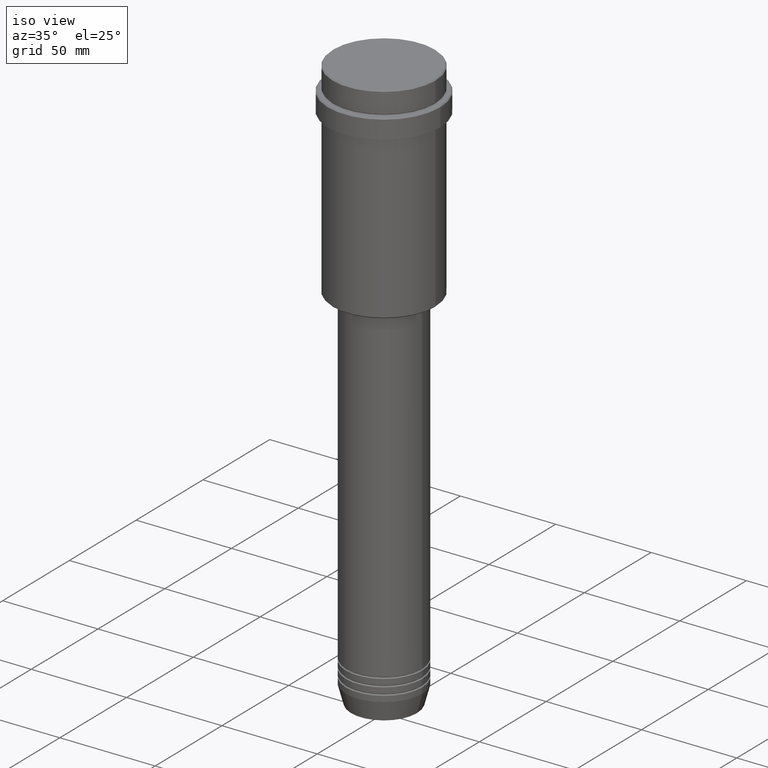
[diagram: clean part render]
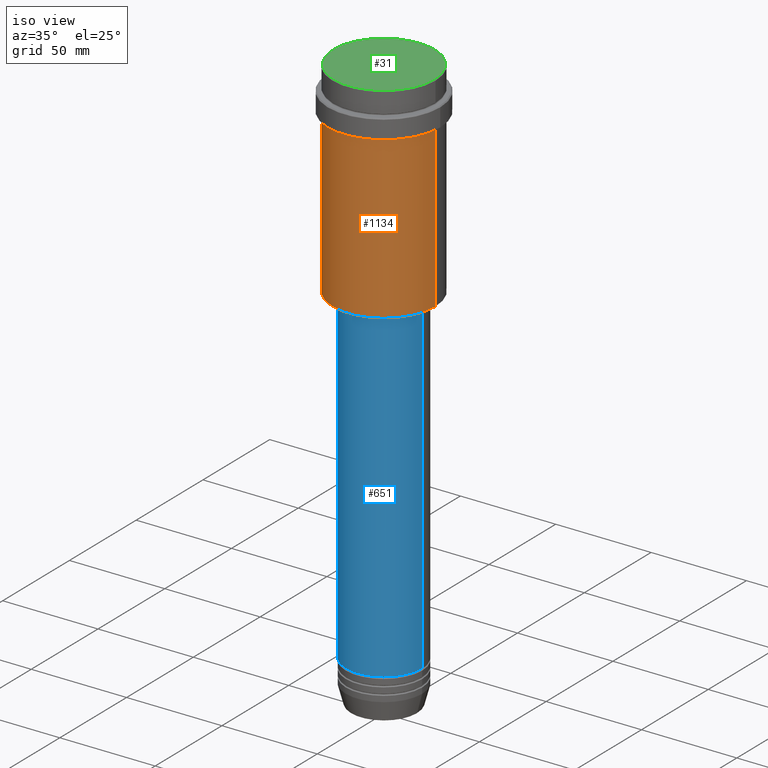
[diagram: same view with three faces highlighted in distinct colors, each labeled with its STEP entity id]
A machine part, iso view with three faces highlighted in distinct colors.
Their STEP definitions:

[orange] entity #1134 — the highlighted cylindrical surface (partial cylindrical patch) has radius 27 mm, axis along (-0, -0, 1).
#30 = DIRECTION ( 'NONE',  ( -0.000000000000000000, -0.000000000000000000, 1.000000000000000000 ) ) ;
#48 = VECTOR ( 'NONE', #726, 1000.000000000000000 ) ;
#59 = LINE ( 'NONE', #1354, #941 ) ;
#140 = EDGE_LOOP ( 'NONE', ( #185, #521, #932, #1257 ) ) ;
#161 = DIRECTION ( 'NONE',  ( -1.000000000000000000, 0.000000000000000000, 0.000000000000000000 ) ) ;
#185 = ORIENTED_EDGE ( 'NONE', *, *, #887, .F. ) ;
#190 = EDGE_CURVE ( 'NONE', #374, #734, #844, .T. ) ;
#197 = CARTESIAN_POINT ( 'NONE',  ( -27.00000000000000355, 3.306546357697854128E-15, -107.4999999999999574 ) ) ;
#232 = DIRECTION ( 'NONE',  ( 1.000000000000000000, 0.000000000000000000, 0.000000000000000000 ) ) ;
#239 = DIRECTION ( 'NONE',  ( 1.000000000000000000, 0.000000000000000000, 0.000000000000000000 ) ) ;
#251 = CARTESIAN_POINT ( 'NONE',  ( -27.00000000000000355, 3.306546357697854128E-15, -23.00000000000001421 ) ) ;
#306 = EDGE_CURVE ( 'NONE', #950, #438, #1367, .T. ) ;
#323 = EDGE_CURVE ( 'NONE', #438, #734, #59, .T. ) ;
#348 = CARTESIAN_POINT ( 'NONE',  ( 27.00000000000000355, 0.000000000000000000, -23.00000000000001421 ) ) ;
#374 = VERTEX_POINT ( 'NONE', #251 ) ;
#438 = VERTEX_POINT ( 'NONE', #777 ) ;
#491 = DIRECTION ( 'NONE',  ( -0.000000000000000000, -0.000000000000000000, 1.000000000000000000 ) ) ;
#521 = ORIENTED_EDGE ( 'NONE', *, *, #306, .T. ) ;
#623 = LINE ( 'NONE', #852, #48 ) ;
#670 = FACE_OUTER_BOUND ( 'NONE', #140, .T. ) ;
#726 = DIRECTION ( 'NONE',  ( -0.000000000000000000, -0.000000000000000000, 1.000000000000000000 ) ) ;
#734 = VERTEX_POINT ( 'NONE', #348 ) ;
#756 = AXIS2_PLACEMENT_3D ( 'NONE', #919, #930, #161 ) ;
#777 = CARTESIAN_POINT ( 'NONE',  ( 27.00000000000000355, 0.000000000000000000, -107.4999999999999574 ) ) ;
#844 = CIRCLE ( 'NONE', #1146, 27.00000000000000355 ) ;
#850 = AXIS2_PLACEMENT_3D ( 'NONE', #1336, #30, #232 ) ;
#852 = CARTESIAN_POINT ( 'NONE',  ( -27.00000000000000355, 3.306546357697854128E-15, 0.000000000000000000 ) ) ;
#887 = EDGE_CURVE ( 'NONE', #950, #374, #623, .T. ) ;
#890 = DIRECTION ( 'NONE',  ( -0.000000000000000000, -0.000000000000000000, 1.000000000000000000 ) ) ;
#919 = CARTESIAN_POINT ( 'NONE',  ( 0.000000000000000000, 0.000000000000000000, -107.4999999999999574 ) ) ;
#930 = DIRECTION ( 'NONE',  ( -0.000000000000000000, -0.000000000000000000, 1.000000000000000000 ) ) ;
#932 = ORIENTED_EDGE ( 'NONE', *, *, #323, .T. ) ;
#941 = VECTOR ( 'NONE', #491, 1000.000000000000000 ) ;
#950 = VERTEX_POINT ( 'NONE', #197 ) ;
#1007 = CARTESIAN_POINT ( 'NONE',  ( 0.000000000000000000, 0.000000000000000000, -23.00000000000001421 ) ) ;
#1134 = ADVANCED_FACE ( 'NONE', ( #670 ), #1342, .T. ) ;
#1146 = AXIS2_PLACEMENT_3D ( 'NONE', #1007, #890, #239 ) ;
#1257 = ORIENTED_EDGE ( 'NONE', *, *, #190, .F. ) ;
#1336 = CARTESIAN_POINT ( 'NONE',  ( 0.000000000000000000, 0.000000000000000000, 0.000000000000000000 ) ) ;
#1342 = CYLINDRICAL_SURFACE ( 'NONE', #850, 27.00000000000000355 ) ;
#1354 = CARTESIAN_POINT ( 'NONE',  ( 27.00000000000000355, 0.000000000000000000, 0.000000000000000000 ) ) ;
#1367 = CIRCLE ( 'NONE', #756, 27.00000000000000355 ) ;

[blue] entity #651 — the highlighted cylindrical surface (partial cylindrical patch) has radius 20 mm, axis along (-0, -0, 1).
#1 = CIRCLE ( 'NONE', #426, 20.00000000000000000 ) ;
#15 = DIRECTION ( 'NONE',  ( 1.000000000000000000, 0.000000000000000000, 0.000000000000000000 ) ) ;
#18 = DIRECTION ( 'NONE',  ( -0.000000000000000000, -0.000000000000000000, 1.000000000000000000 ) ) ;
#35 = EDGE_CURVE ( 'NONE', #923, #878, #1383, .T. ) ;
#36 = CARTESIAN_POINT ( 'NONE',  ( 0.000000000000000000, 0.000000000000000000, 0.000000000000000000 ) ) ;
#50 = CYLINDRICAL_SURFACE ( 'NONE', #1082, 20.00000000000000000 ) ;
#129 = EDGE_CURVE ( 'NONE', #1190, #923, #1, .T. ) ;
#153 = CARTESIAN_POINT ( 'NONE',  ( 20.00000000000000000, 0.000000000000000000, 0.000000000000000000 ) ) ;
#206 = DIRECTION ( 'NONE',  ( 1.000000000000000000, 0.000000000000000000, 0.000000000000000000 ) ) ;
#263 = DIRECTION ( 'NONE',  ( -0.000000000000000000, -0.000000000000000000, 1.000000000000000000 ) ) ;
#283 = CARTESIAN_POINT ( 'NONE',  ( 20.00000000000000000, 0.000000000000000000, -108.9999999999999289 ) ) ;
#297 = CIRCLE ( 'NONE', #575, 20.00000000000000000 ) ;
#345 = CARTESIAN_POINT ( 'NONE',  ( -20.00000000000000000, 2.449293598294706513E-15, -280.9999999999999432 ) ) ;
#366 = FACE_OUTER_BOUND ( 'NONE', #1035, .T. ) ;
#422 = CARTESIAN_POINT ( 'NONE',  ( 0.000000000000000000, 0.000000000000000000, -108.9999999999999289 ) ) ;
#426 = AXIS2_PLACEMENT_3D ( 'NONE', #1209, #557, #15 ) ;
#435 = VERTEX_POINT ( 'NONE', #1132 ) ;
#557 = DIRECTION ( 'NONE',  ( -0.000000000000000000, -0.000000000000000000, 1.000000000000000000 ) ) ;
#575 = AXIS2_PLACEMENT_3D ( 'NONE', #422, #18, #206 ) ;
#579 = EDGE_CURVE ( 'NONE', #435, #878, #297, .T. ) ;
#580 = DIRECTION ( 'NONE',  ( 1.000000000000000000, 0.000000000000000000, 0.000000000000000000 ) ) ;
#596 = DIRECTION ( 'NONE',  ( -0.000000000000000000, -0.000000000000000000, 1.000000000000000000 ) ) ;
#625 = VECTOR ( 'NONE', #263, 1000.000000000000000 ) ;
#651 = ADVANCED_FACE ( 'NONE', ( #366 ), #50, .T. ) ;
#774 = CARTESIAN_POINT ( 'NONE',  ( 20.00000000000000000, 0.000000000000000000, -280.9999999999999432 ) ) ;
#793 = ORIENTED_EDGE ( 'NONE', *, *, #35, .T. ) ;
#817 = ORIENTED_EDGE ( 'NONE', *, *, #579, .F. ) ;
#834 = LINE ( 'NONE', #1245, #625 ) ;
#878 = VERTEX_POINT ( 'NONE', #283 ) ;
#923 = VERTEX_POINT ( 'NONE', #774 ) ;
#929 = DIRECTION ( 'NONE',  ( -0.000000000000000000, -0.000000000000000000, 1.000000000000000000 ) ) ;
#1035 = EDGE_LOOP ( 'NONE', ( #1090, #1078, #793, #817 ) ) ;
#1078 = ORIENTED_EDGE ( 'NONE', *, *, #129, .T. ) ;
#1082 = AXIS2_PLACEMENT_3D ( 'NONE', #36, #929, #580 ) ;
#1090 = ORIENTED_EDGE ( 'NONE', *, *, #1357, .F. ) ;
#1132 = CARTESIAN_POINT ( 'NONE',  ( -20.00000000000000000, 2.449293598294706513E-15, -108.9999999999999289 ) ) ;
#1190 = VERTEX_POINT ( 'NONE', #345 ) ;
#1209 = CARTESIAN_POINT ( 'NONE',  ( 0.000000000000000000, 0.000000000000000000, -280.9999999999999432 ) ) ;
#1245 = CARTESIAN_POINT ( 'NONE',  ( -20.00000000000000000, 2.449293598294706513E-15, 0.000000000000000000 ) ) ;
#1301 = VECTOR ( 'NONE', #596, 1000.000000000000000 ) ;
#1357 = EDGE_CURVE ( 'NONE', #1190, #435, #834, .T. ) ;
#1383 = LINE ( 'NONE', #153, #1301 ) ;

[green] entity #31 — the highlighted planar face has unit normal (0, -0, 1).
#17 = DIRECTION ( 'NONE',  ( -0.000000000000000000, -0.000000000000000000, 1.000000000000000000 ) ) ;
#31 = ADVANCED_FACE ( 'NONE', ( #1055 ), #945, .T. ) ;
#294 = EDGE_CURVE ( 'NONE', #1282, #1197, #1192, .T. ) ;
#303 = DIRECTION ( 'NONE',  ( 1.000000000000000000, 0.000000000000000000, 0.000000000000000000 ) ) ;
#399 = ORIENTED_EDGE ( 'NONE', *, *, #294, .T. ) ;
#519 = ORIENTED_EDGE ( 'NONE', *, *, #933, .T. ) ;
#573 = AXIS2_PLACEMENT_3D ( 'NONE', #1066, #1040, #1242 ) ;
#620 = CARTESIAN_POINT ( 'NONE',  ( 26.49999999999999645, 3.275930187719169552E-15, 0.000000000000000000 ) ) ;
#718 = DIRECTION ( 'NONE',  ( 0.000000000000000000, -0.000000000000000000, 1.000000000000000000 ) ) ;
#790 = CARTESIAN_POINT ( 'NONE',  ( -26.49999999999999645, 0.000000000000000000, 0.000000000000000000 ) ) ;
#845 = CARTESIAN_POINT ( 'NONE',  ( 0.000000000000000000, 0.000000000000000000, 0.000000000000000000 ) ) ;
#903 = AXIS2_PLACEMENT_3D ( 'NONE', #994, #17, #1205 ) ;
#933 = EDGE_CURVE ( 'NONE', #1197, #1282, #1219, .T. ) ;
#945 = PLANE ( 'NONE',  #1302 ) ;
#994 = CARTESIAN_POINT ( 'NONE',  ( 0.000000000000000000, 0.000000000000000000, 0.000000000000000000 ) ) ;
#1040 = DIRECTION ( 'NONE',  ( -0.000000000000000000, -0.000000000000000000, 1.000000000000000000 ) ) ;
#1055 = FACE_OUTER_BOUND ( 'NONE', #1180, .T. ) ;
#1066 = CARTESIAN_POINT ( 'NONE',  ( 0.000000000000000000, 0.000000000000000000, 0.000000000000000000 ) ) ;
#1180 = EDGE_LOOP ( 'NONE', ( #519, #399 ) ) ;
#1192 = CIRCLE ( 'NONE', #573, 26.49999999999999645 ) ;
#1197 = VERTEX_POINT ( 'NONE', #790 ) ;
#1205 = DIRECTION ( 'NONE',  ( 1.000000000000000000, 0.000000000000000000, 0.000000000000000000 ) ) ;
#1219 = CIRCLE ( 'NONE', #903, 26.49999999999999645 ) ;
#1242 = DIRECTION ( 'NONE',  ( 1.000000000000000000, 0.000000000000000000, 0.000000000000000000 ) ) ;
#1282 = VERTEX_POINT ( 'NONE', #620 ) ;
#1302 = AXIS2_PLACEMENT_3D ( 'NONE', #845, #718, #303 ) ;